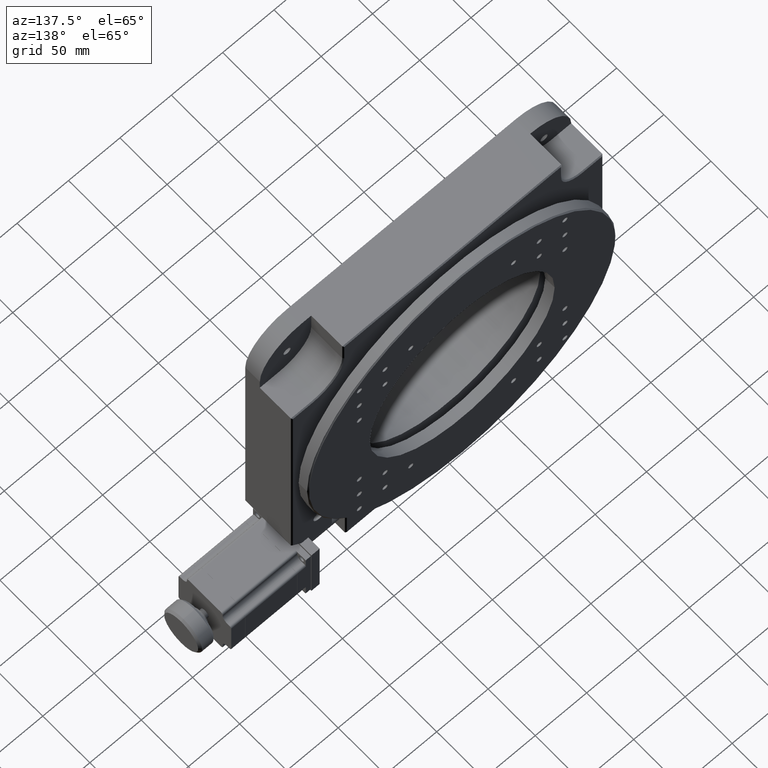
[diagram: clean part render]
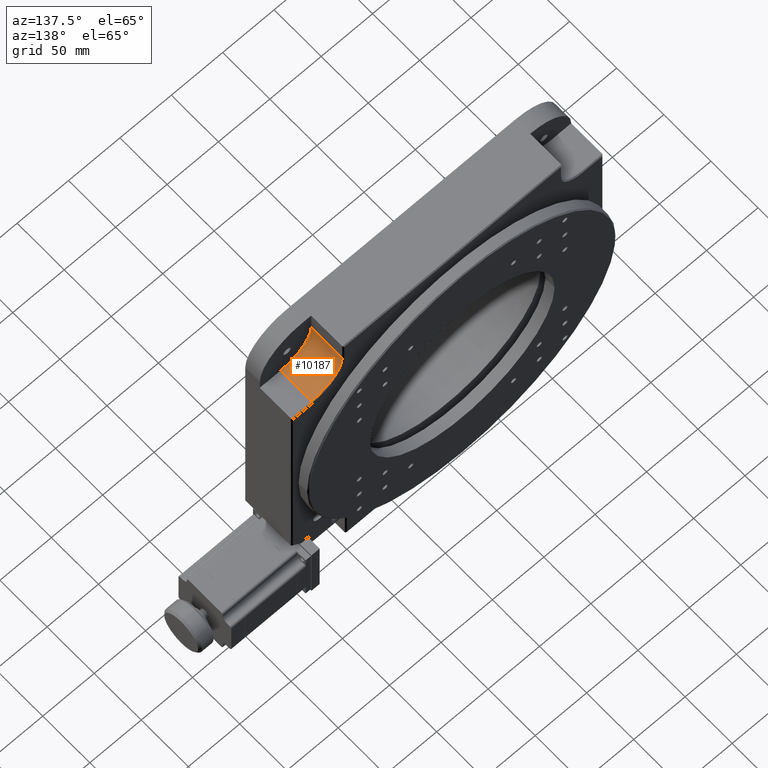
[diagram: same view with one face highlighted and labeled with its STEP entity id]
A machine part, auxiliary view. The second image highlights one B-rep face of the part: STEP entity #10187.
In plain terms, the highlighted cylindrical surface (partial cylindrical patch) has radius 30 mm, axis along (0, 1, -0).
Its self-contained STEP definition (entity closure, byte-faithful):
#97 = CARTESIAN_POINT ( 'NONE',  ( 283.0000000000000600, 48.50000000000000700, -20.00000000000024200 ) ) ;
#267 = VECTOR ( 'NONE', #3951, 1000.000000000000000 ) ;
#1063 = VERTEX_POINT ( 'NONE', #1216 ) ;
#1216 = CARTESIAN_POINT ( 'NONE',  ( 253.0000000000000000, 15.49999999999996600, -20.00000000000012800 ) ) ;
#1717 = CARTESIAN_POINT ( 'NONE',  ( 283.0000000000001100, 48.50000000000000000, -50.00000000000012800 ) ) ;
#2111 = ORIENTED_EDGE ( 'NONE', *, *, #5625, .F. ) ;
#2657 = LINE ( 'NONE', #13552, #8186 ) ;
#2766 = ORIENTED_EDGE ( 'NONE', *, *, #9816, .T. ) ;
#3170 = AXIS2_PLACEMENT_3D ( 'NONE', #97, #10685, #11898 ) ;
#3301 = EDGE_LOOP ( 'NONE', ( #4141, #2111, #2766, #9316 ) ) ;
#3731 = CARTESIAN_POINT ( 'NONE',  ( 283.0000000000000600, 15.49999999999996300, -20.00000000000024200 ) ) ;
#3812 = LINE ( 'NONE', #9758, #267 ) ;
#3951 = DIRECTION ( 'NONE',  ( -1.502143935577764200E-016, -1.000000000000000000, -8.429528534281309500E-033 ) ) ;
#4141 = ORIENTED_EDGE ( 'NONE', *, *, #5759, .T. ) ;
#4494 = CYLINDRICAL_SURFACE ( 'NONE', #12301, 29.99999999999997200 ) ;
#5391 = CIRCLE ( 'NONE', #3170, 29.99999999999997200 ) ;
#5625 = EDGE_CURVE ( 'NONE', #13085, #1063, #6744, .T. ) ;
#5759 = EDGE_CURVE ( 'NONE', #15147, #1063, #3812, .T. ) ;
#6744 = CIRCLE ( 'NONE', #14698, 29.99999999999997200 ) ;
#7162 = DIRECTION ( 'NONE',  ( 1.000000000000000000, -1.734723475976808800E-016, 1.156482317317872500E-016 ) ) ;
#8186 = VECTOR ( 'NONE', #9997, 1000.000000000000000 ) ;
#9262 = CARTESIAN_POINT ( 'NONE',  ( 283.0000000000000600, 15.49999999999996300, -50.00000000000011400 ) ) ;
#9316 = ORIENTED_EDGE ( 'NONE', *, *, #14747, .F. ) ;
#9338 = CARTESIAN_POINT ( 'NONE',  ( 283.0000000000000600, 15.49999999999996300, -20.00000000000024200 ) ) ;
#9758 = CARTESIAN_POINT ( 'NONE',  ( 253.0000000000000000, 15.49999999999996100, -20.00000000000004600 ) ) ;
#9790 = FACE_OUTER_BOUND ( 'NONE', #3301, .T. ) ;
#9816 = EDGE_CURVE ( 'NONE', #13085, #11512, #2657, .T. ) ;
#9997 = DIRECTION ( 'NONE',  ( 1.502143935577759200E-016, 1.000000000000000000, 5.220704160324248300E-032 ) ) ;
#10187 = ADVANCED_FACE ( 'NONE', ( #9790 ), #4494, .F. ) ;
#10685 = DIRECTION ( 'NONE',  ( -1.502143935577754100E-016, -1.000000000000000000, 3.534798453467996800E-032 ) ) ;
#11512 = VERTEX_POINT ( 'NONE', #1717 ) ;
#11898 = DIRECTION ( 'NONE',  ( 1.000000000000000000, -2.312964634635744900E-016, -1.734723475976808700E-015 ) ) ;
#12301 = AXIS2_PLACEMENT_3D ( 'NONE', #3731, #13032, #7162 ) ;
#13032 = DIRECTION ( 'NONE',  ( 1.502143935577754100E-016, 1.000000000000000000, -3.534798453467996800E-032 ) ) ;
#13085 = VERTEX_POINT ( 'NONE', #9262 ) ;
#13552 = CARTESIAN_POINT ( 'NONE',  ( 283.0000000000001100, 15.49999999999995700, -50.00000000000009900 ) ) ;
#14164 = DIRECTION ( 'NONE',  ( 1.502143935577754100E-016, 1.000000000000000000, -3.534798453467996800E-032 ) ) ;
#14698 = AXIS2_PLACEMENT_3D ( 'NONE', #9338, #14164, #15361 ) ;
#14747 = EDGE_CURVE ( 'NONE', #15147, #11512, #5391, .T. ) ;
#14845 = CARTESIAN_POINT ( 'NONE',  ( 253.0000000000000000, 48.50000000000001400, -20.00000000000004600 ) ) ;
#15147 = VERTEX_POINT ( 'NONE', #14845 ) ;
#15361 = DIRECTION ( 'NONE',  ( 1.000000000000000000, -1.734723475976808800E-016, 1.156482317317872500E-016 ) ) ;